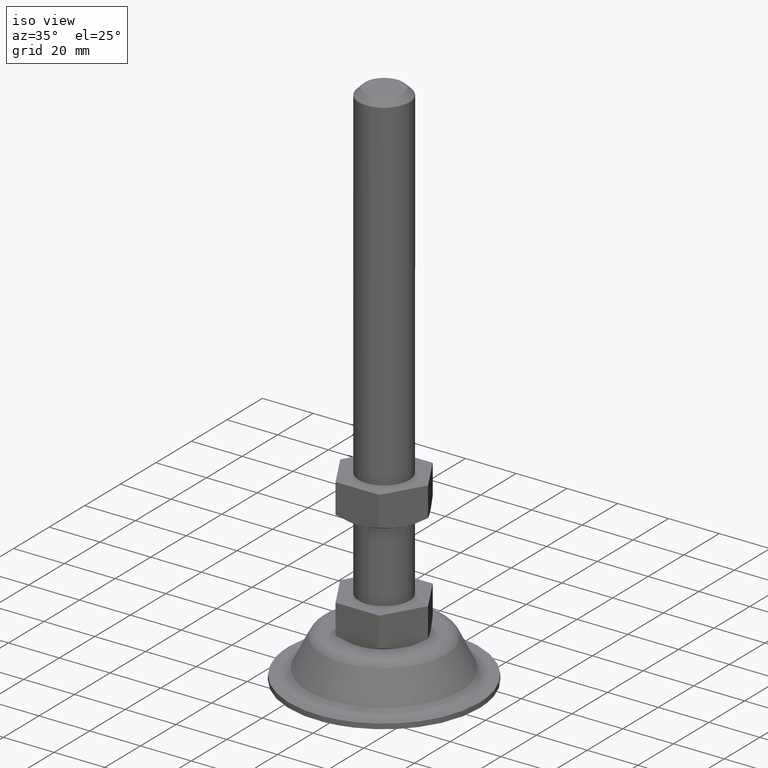
[diagram: clean part render]
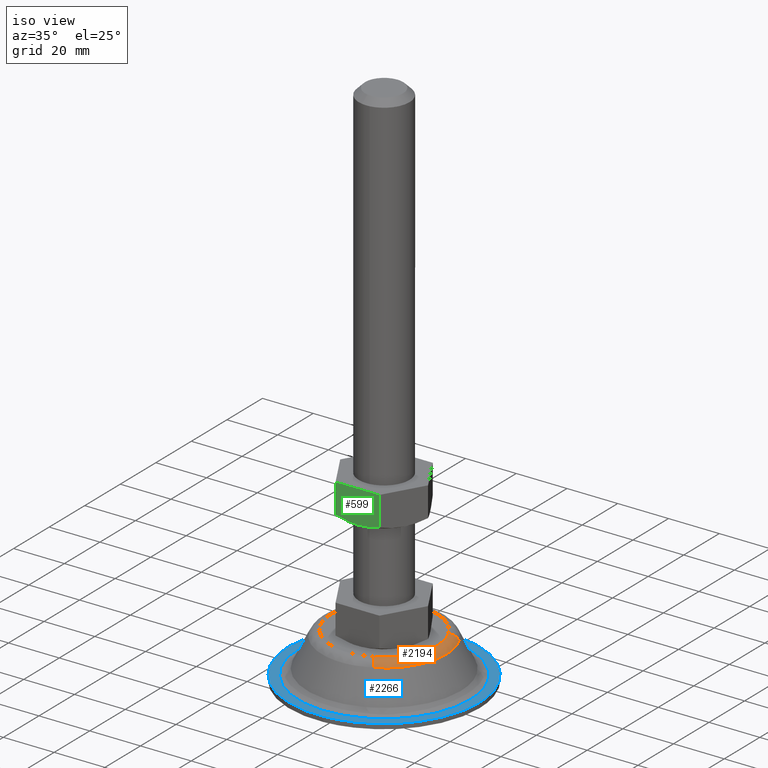
[diagram: same view with three faces highlighted in distinct colors, each labeled with its STEP entity id]
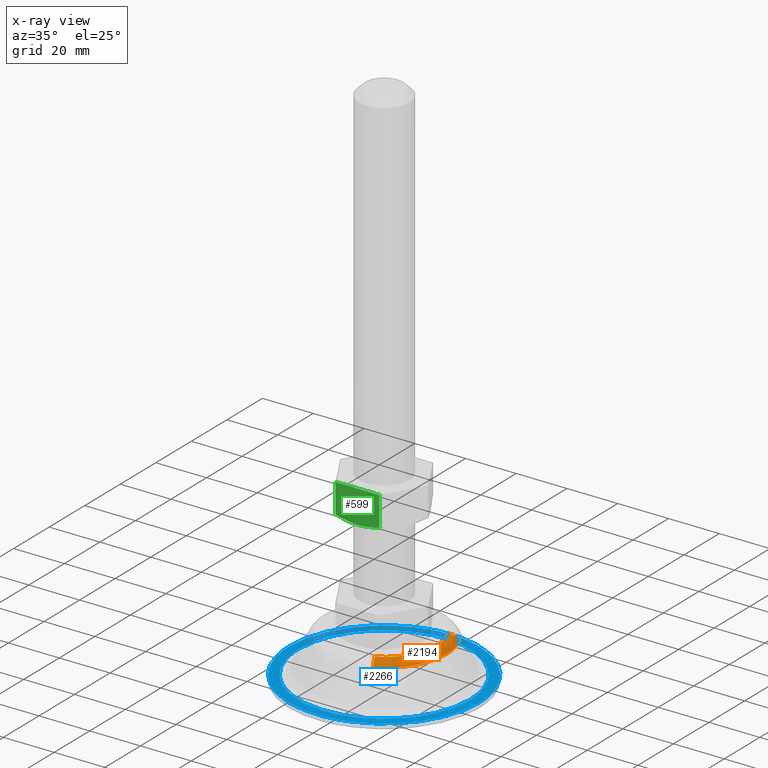
[diagram: x-ray of the same camera — body ghosted, the three highlighted faces saturated]
A machine part, iso view with three faces highlighted in distinct colors.
The next image is the same camera in x-ray (body ghosted, the three faces saturated) — at least one of them is partly hidden behind the body in this view.
Their STEP definitions:

[orange] entity #2194 — the highlighted face is a freeform B-spline surface patch.
#1387=CARTESIAN_POINT('',(21.925249911094561,10.998499066037970,15.762949531444070));
#1388=VERTEX_POINT('',#1387);
#1402=CARTESIAN_POINT('',(24.529238988803549,0.0,15.762949531433700));
#1403=VERTEX_POINT('',#1402);
#1404=CARTESIAN_POINT('',(21.925249911094561,10.998499066037970,15.762949531444066));
#1405=CARTESIAN_POINT('',(24.529238988803552,5.807507917918049,15.762949531433698));
#1406=CARTESIAN_POINT('',(24.529238988803549,0.0,15.762949531433700));
#1414=(BOUNDED_CURVE()B_SPLINE_CURVE(2,(#1404,#1405,#1406),.UNSPECIFIED.,.F.,.U.)B_SPLINE_CURVE_WITH_KNOTS((3,3),(0.423769062115740,0.500000000000000),.UNSPECIFIED.)CURVE()GEOMETRIC_REPRESENTATION_ITEM()RATIONAL_B_SPLINE_CURVE((0.875845342762740,0.910689900919643,1.0))REPRESENTATION_ITEM(''));
#1415=EDGE_CURVE('',#1388,#1403,#1414,.T.);
#1417=CARTESIAN_POINT('',(10.998499066009630,-21.925249911050471,15.762949531550230));
#1418=VERTEX_POINT('',#1417);
#1419=CARTESIAN_POINT('',(24.529238988803549,0.0,15.762949531433700));
#1420=CARTESIAN_POINT('',(24.529238988803549,-15.137740942828032,15.762949531433700));
#1421=CARTESIAN_POINT('',(10.998499066009629,-21.925249911050471,15.762949531550234));
#1429=(BOUNDED_CURVE()B_SPLINE_CURVE(2,(#1419,#1420,#1421),.UNSPECIFIED.,.F.,.U.)B_SPLINE_CURVE_WITH_KNOTS((3,3),(0.500000000000000,0.673769062115809),.UNSPECIFIED.)CURVE()GEOMETRIC_REPRESENTATION_ITEM()RATIONAL_B_SPLINE_CURVE((1.0,0.796416880266823,0.875845342762804))REPRESENTATION_ITEM(''));
#1430=EDGE_CURVE('',#1403,#1418,#1429,.T.);
#2074=CARTESIAN_POINT('',(9.388559230861771,-18.715872611456390,18.000000000000099));
#2075=VERTEX_POINT('',#2074);
#2093=CARTESIAN_POINT('',(18.715872611116431,9.388559230651554,18.000000000000099));
#2094=VERTEX_POINT('',#2093);
#2110=CARTESIAN_POINT('',(18.715872611116435,9.388559230651554,18.000000000000099));
#2111=CARTESIAN_POINT('',(20.943466161061814,10.506000795707660,17.999999996112813));
#2112=CARTESIAN_POINT('',(21.925249911094564,10.998499066037972,15.762949531444075));
#2120=(BOUNDED_CURVE()B_SPLINE_CURVE(2,(#2110,#2111,#2112),.UNSPECIFIED.,.F.,.U.)B_SPLINE_CURVE_WITH_KNOTS((3,3),(-1.657824829116691,-0.347170207455725),.UNSPECIFIED.)CURVE()GEOMETRIC_REPRESENTATION_ITEM()RATIONAL_B_SPLINE_CURVE((0.909224137584040,0.771255055186602,0.908176502131661))REPRESENTATION_ITEM(''));
#2121=EDGE_CURVE('',#2094,#1388,#2120,.T.);
#2127=CARTESIAN_POINT('',(9.388559230861773,-18.715872611456390,18.000000000000099));
#2128=CARTESIAN_POINT('',(10.506000795743267,-20.943466161132783,17.999999995616704));
#2129=CARTESIAN_POINT('',(10.998499066009629,-21.925249911050468,15.762949531550232));
#2137=(BOUNDED_CURVE()B_SPLINE_CURVE(2,(#2127,#2128,#2129),.UNSPECIFIED.,.F.,.U.)B_SPLINE_CURVE_WITH_KNOTS((3,3),(-1.657824828869857,-0.347170207528961),.UNSPECIFIED.)CURVE()GEOMETRIC_REPRESENTATION_ITEM()RATIONAL_B_SPLINE_CURVE((0.909224137532073,0.771255055220098,0.908176502116360))REPRESENTATION_ITEM(''));
#2138=EDGE_CURVE('',#2075,#1418,#2137,.T.);
#2143=CARTESIAN_POINT('',(18.528652254155258,9.294642721913061,17.994512264173697));
#2144=CARTESIAN_POINT('',(27.823294976068308,-9.234009532242194,17.994512264173697));
#2145=CARTESIAN_POINT('',(9.294642721913061,-18.528652254155258,17.994512264173697));
#2146=CARTESIAN_POINT('',(21.022028842772066,10.545410680882034,18.140782588950465));
#2147=CARTESIAN_POINT('',(31.567439523654098,-10.476618161890027,18.140782588950458));
#2148=CARTESIAN_POINT('',(10.545410680882036,-21.022028842772066,18.140782588950465));
#2149=CARTESIAN_POINT('',(22.003449994858904,11.037727058956960,15.572285087711302));
#2150=CARTESIAN_POINT('',(33.041177053815851,-10.965722935901944,15.572285087711297));
#2151=CARTESIAN_POINT('',(11.037727058956960,-22.003449994858894,15.572285087711302));
#2159=(BOUNDED_SURFACE()B_SPLINE_SURFACE(2,2,((#2143,#2146,#2149),(#2144,#2147,#2150),(#2145,#2148,#2151)),.UNSPECIFIED.,.F.,.F.,.U.)B_SPLINE_SURFACE_WITH_KNOTS((3,3),(3,3),(0.0,40.786328136550502),(0.0,5.033719716868561),.UNSPECIFIED.)GEOMETRIC_REPRESENTATION_ITEM()RATIONAL_B_SPLINE_SURFACE(((0.923693170007832,0.756838388212602,0.922540804150660),(0.653149704248237,0.535165556567428,0.652334858536222),(0.923693170007832,0.756838388212602,0.922540804150660)))REPRESENTATION_ITEM('')SURFACE());
#2160=CARTESIAN_POINT('',(20.938694608125552,0.0,18.0));
#2161=VERTEX_POINT('',#2160);
#2162=CARTESIAN_POINT('',(20.938694608125552,0.0,18.0));
#2163=CARTESIAN_POINT('',(20.938694608125552,-12.921906578390185,18.0));
#2164=CARTESIAN_POINT('',(9.388559230861771,-18.715872611456394,18.000000000000103));
#2172=(BOUNDED_CURVE()B_SPLINE_CURVE(2,(#2162,#2163,#2164),.UNSPECIFIED.,.F.,.U.)B_SPLINE_CURVE_WITH_KNOTS((3,3),(0.500000000000000,0.673769062112985),.UNSPECIFIED.)CURVE()GEOMETRIC_REPRESENTATION_ITEM()RATIONAL_B_SPLINE_CURVE((1.0,0.796416880270132,0.875845342760222))REPRESENTATION_ITEM(''));
#2173=EDGE_CURVE('',#2161,#2075,#2172,.T.);
#2174=ORIENTED_EDGE('',*,*,#2173,.T.);
#2175=ORIENTED_EDGE('',*,*,#2138,.T.);
#2176=ORIENTED_EDGE('',*,*,#1430,.F.);
#2177=ORIENTED_EDGE('',*,*,#1415,.F.);
#2178=ORIENTED_EDGE('',*,*,#2121,.F.);
#2179=CARTESIAN_POINT('',(18.715872611116431,9.388559230651554,18.000000000000103));
#2180=CARTESIAN_POINT('',(20.938694608125552,4.957415710571747,18.0));
#2181=CARTESIAN_POINT('',(20.938694608125552,0.0,18.0));
#2189=(BOUNDED_CURVE()B_SPLINE_CURVE(2,(#2179,#2180,#2181),.UNSPECIFIED.,.F.,.U.)B_SPLINE_CURVE_WITH_KNOTS((3,3),(0.423769062113509,0.500000000000000),.UNSPECIFIED.)CURVE()GEOMETRIC_REPRESENTATION_ITEM()RATIONAL_B_SPLINE_CURVE((0.875845342760701,0.910689900917030,1.0))REPRESENTATION_ITEM(''));
#2190=EDGE_CURVE('',#2094,#2161,#2189,.T.);
#2191=ORIENTED_EDGE('',*,*,#2190,.T.);
#2192=EDGE_LOOP('',(#2174,#2175,#2176,#2177,#2178,#2191));
#2193=FACE_OUTER_BOUND('',#2192,.T.);
#2194=ADVANCED_FACE('',(#2193),#2159,.T.);

[blue] entity #2266 — the highlighted face is a freeform B-spline surface patch.
#1192=CARTESIAN_POINT('',(-4.426273210541065,37.237858497307982,2.000000000000200));
#1193=VERTEX_POINT('',#1192);
#1199=CARTESIAN_POINT('',(37.500000000000000,0.0,2.000000000000200));
#1200=VERTEX_POINT('',#1199);
#1201=CARTESIAN_POINT('',(-4.426273210541065,37.237858497307990,2.000000000000200));
#1202=CARTESIAN_POINT('',(-2.220899136429925,37.500000000000000,2.000000000000200));
#1203=CARTESIAN_POINT('',(0.0,37.500000000000000,2.000000000000200));
#1204=CARTESIAN_POINT('',(37.500000000000000,37.500000000000000,2.000000000000199));
#1205=CARTESIAN_POINT('',(37.500000000000000,0.0,2.000000000000200));
#1213=(BOUNDED_CURVE()B_SPLINE_CURVE(2,(#1201,#1202,#1203,#1204,#1205),.UNSPECIFIED.,.F.,.U.)B_SPLINE_CURVE_WITH_KNOTS((3,2,3),(0.229562521574001,0.250000000000000,0.500000000000000),.UNSPECIFIED.)CURVE()GEOMETRIC_REPRESENTATION_ITEM()RATIONAL_B_SPLINE_CURVE((0.956026848384252,0.976056004637514,1.0,0.707106781186547,1.0))REPRESENTATION_ITEM(''));
#1214=EDGE_CURVE('',#1193,#1200,#1213,.T.);
#1216=CARTESIAN_POINT('',(2.289268383772411,-37.430058111955439,2.000000000000200));
#1217=VERTEX_POINT('',#1216);
#1218=CARTESIAN_POINT('',(37.500000000000000,0.0,2.000000000000200));
#1219=CARTESIAN_POINT('',(37.500000000000000,-35.276526465916405,2.000000000000201));
#1220=CARTESIAN_POINT('',(2.289268383772411,-37.430058111955447,2.000000000000200));
#1228=(BOUNDED_CURVE()B_SPLINE_CURVE(2,(#1218,#1219,#1220),.UNSPECIFIED.,.F.,.U.)B_SPLINE_CURVE_WITH_KNOTS((3,3),(0.500000000000000,0.739333201256925),.UNSPECIFIED.)CURVE()GEOMETRIC_REPRESENTATION_ITEM()RATIONAL_B_SPLINE_CURVE((1.0,0.719603713259726,0.976072553928287))REPRESENTATION_ITEM(''));
#1229=EDGE_CURVE('',#1200,#1217,#1228,.T.);
#1303=CARTESIAN_POINT('',(-37.500000000000000,0.0,2.000000000000200));
#1304=VERTEX_POINT('',#1303);
#1305=CARTESIAN_POINT('',(2.289268383772411,-37.430058111955447,2.000000000000200));
#1306=CARTESIAN_POINT('',(1.145702626617998,-37.500000000000000,2.000000000000200));
#1307=CARTESIAN_POINT('',(0.0,-37.500000000000000,2.000000000000200));
#1308=CARTESIAN_POINT('',(-37.500000000000000,-37.500000000000000,2.000000000000199));
#1309=CARTESIAN_POINT('',(-37.500000000000000,0.0,2.000000000000200));
#1317=(BOUNDED_CURVE()B_SPLINE_CURVE(2,(#1305,#1306,#1307,#1308,#1309),.UNSPECIFIED.,.F.,.U.)B_SPLINE_CURVE_WITH_KNOTS((3,2,3),(0.739333201256925,0.750000000000000,1.0),.UNSPECIFIED.)CURVE()GEOMETRIC_REPRESENTATION_ITEM()RATIONAL_B_SPLINE_CURVE((0.976072553928287,0.987503067926822,1.0,0.707106781186547,1.0))REPRESENTATION_ITEM(''));
#1318=EDGE_CURVE('',#1217,#1304,#1317,.T.);
#1320=CARTESIAN_POINT('',(-37.500000000000000,0.0,2.000000000000200));
#1321=CARTESIAN_POINT('',(-37.499999999999993,33.306554261016771,2.000000000000200));
#1322=CARTESIAN_POINT('',(-4.426273210541065,37.237858497307990,2.000000000000200));
#1330=(BOUNDED_CURVE()B_SPLINE_CURVE(2,(#1320,#1321,#1322),.UNSPECIFIED.,.F.,.U.)B_SPLINE_CURVE_WITH_KNOTS((3,3),(0.0,0.229562521574001),.UNSPECIFIED.)CURVE()GEOMETRIC_REPRESENTATION_ITEM()RATIONAL_B_SPLINE_CURVE((1.0,0.731050776549033,0.956026848384252))REPRESENTATION_ITEM(''));
#1331=EDGE_CURVE('',#1304,#1193,#1330,.T.);
#1918=CARTESIAN_POINT('',(13.782930928103120,-30.839101996789449,2.000000000003668));
#1919=VERTEX_POINT('',#1918);
#1920=CARTESIAN_POINT('',(-33.778974900876548,0.0,2.000000000000200));
#1921=VERTEX_POINT('',#1920);
#1922=CARTESIAN_POINT('',(13.782930928103116,-30.839101996789456,2.000000000003668));
#1923=CARTESIAN_POINT('',(7.205001522784190,-33.778978065627065,2.000000000003428));
#1924=CARTESIAN_POINT('',(0.000001252369840,-33.778977703035352,2.000000000003058));
#1925=CARTESIAN_POINT('',(-33.778974408255849,-33.778976003107999,2.000000000001325));
#1926=CARTESIAN_POINT('',(-33.778974900876548,0.0,2.000000000000200));
#1934=(BOUNDED_CURVE()B_SPLINE_CURVE(2,(#1922,#1923,#1924,#1925,#1926),.UNSPECIFIED.,.F.,.U.)B_SPLINE_CURVE_WITH_KNOTS((3,2,3),(0.680709527694445,0.750000000000000,1.0),.UNSPECIFIED.)CURVE()GEOMETRIC_REPRESENTATION_ITEM()RATIONAL_B_SPLINE_CURVE((0.882641684402579,0.918821162133287,1.0,0.707106781186548,1.0))REPRESENTATION_ITEM(''));
#1935=EDGE_CURVE('',#1919,#1921,#1934,.T.);
#1954=CARTESIAN_POINT('',(30.000338810761392,15.524136575906599,2.000000000000201));
#1955=VERTEX_POINT('',#1954);
#1969=CARTESIAN_POINT('',(-33.778974900876548,0.0,2.000000000000200));
#1970=CARTESIAN_POINT('',(-33.778974900876555,33.778974900876555,2.000000000000199));
#1971=CARTESIAN_POINT('',(0.0,33.778974900876548,2.000000000000200));
#1972=CARTESIAN_POINT('',(20.554092052148665,33.778974900876548,2.000000000000200));
#1973=CARTESIAN_POINT('',(30.000338810761388,15.524136575906601,2.000000000000201));
#1981=(BOUNDED_CURVE()B_SPLINE_CURVE(2,(#1969,#1970,#1971,#1972,#1973),.UNSPECIFIED.,.F.,.U.)B_SPLINE_CURVE_WITH_KNOTS((3,2,3),(0.0,0.250000000000000,0.421825371001586),.UNSPECIFIED.)CURVE()GEOMETRIC_REPRESENTATION_ITEM()RATIONAL_B_SPLINE_CURVE((1.0,0.707106781186548,1.0,0.798694056054119,0.874103860134842))REPRESENTATION_ITEM(''));
#1982=EDGE_CURVE('',#1921,#1955,#1981,.T.);
#2010=CARTESIAN_POINT('',(33.778974900876548,0.0,2.000000000000200));
#2011=VERTEX_POINT('',#2010);
#2012=CARTESIAN_POINT('',(33.778974900876548,0.0,2.000000000000200));
#2013=CARTESIAN_POINT('',(33.778975660625690,-21.902260505486836,2.000000000001935));
#2014=CARTESIAN_POINT('',(13.782930928103116,-30.839101996789456,2.000000000003668));
#2022=(BOUNDED_CURVE()B_SPLINE_CURVE(2,(#2012,#2013,#2014),.UNSPECIFIED.,.F.,.U.)B_SPLINE_CURVE_WITH_KNOTS((3,3),(0.500000000000000,0.680709527694445),.UNSPECIFIED.)CURVE()GEOMETRIC_REPRESENTATION_ITEM()RATIONAL_B_SPLINE_CURVE((1.0,0.788285619053261,0.882641684402579))REPRESENTATION_ITEM(''));
#2023=EDGE_CURVE('',#2011,#1919,#2022,.T.);
#2025=CARTESIAN_POINT('',(30.000338810761388,15.524136575906601,2.000000000000201));
#2026=CARTESIAN_POINT('',(33.778974900876541,8.221935754159370,2.000000000000200));
#2027=CARTESIAN_POINT('',(33.778974900876548,0.0,2.000000000000200));
#2035=(BOUNDED_CURVE()B_SPLINE_CURVE(2,(#2025,#2026,#2027),.UNSPECIFIED.,.F.,.U.)B_SPLINE_CURVE_WITH_KNOTS((3,3),(0.421825371001586,0.500000000000000),.UNSPECIFIED.)CURVE()GEOMETRIC_REPRESENTATION_ITEM()RATIONAL_B_SPLINE_CURVE((0.874103860134842,0.908412725132428,1.0))REPRESENTATION_ITEM(''));
#2036=EDGE_CURVE('',#1955,#2011,#2035,.T.);
#2249=CARTESIAN_POINT('',(-41.246249854635451,-41.245338546059941,2.000000000000200));
#2250=CARTESIAN_POINT('',(41.246251866292212,-41.245338546059941,2.000000000000200));
#2251=CARTESIAN_POINT('',(-41.246249854635451,41.245567874930707,2.000000000000200));
#2252=CARTESIAN_POINT('',(41.246251866292212,41.245567874930707,2.000000000000200));
#2253=B_SPLINE_SURFACE_WITH_KNOTS('',1,1,((#2249,#2251),(#2250,#2252)),.UNSPECIFIED.,.F.,.F.,.U.,(2,2),(2,2),(0.0,82.492501720927663),(0.0,82.490906420990655),.UNSPECIFIED.);
#2254=ORIENTED_EDGE('',*,*,#1318,.F.);
#2255=ORIENTED_EDGE('',*,*,#1229,.F.);
#2256=ORIENTED_EDGE('',*,*,#1214,.F.);
#2257=ORIENTED_EDGE('',*,*,#1331,.F.);
#2258=EDGE_LOOP('',(#2254,#2255,#2256,#2257));
#2259=FACE_OUTER_BOUND('',#2258,.T.);
#2260=ORIENTED_EDGE('',*,*,#1982,.T.);
#2261=ORIENTED_EDGE('',*,*,#2036,.T.);
#2262=ORIENTED_EDGE('',*,*,#2023,.T.);
#2263=ORIENTED_EDGE('',*,*,#1935,.T.);
#2264=EDGE_LOOP('',(#2260,#2261,#2262,#2263));
#2265=FACE_BOUND('',#2264,.T.);
#2266=ADVANCED_FACE('',(#2259,#2265),#2253,.T.);

[green] entity #599 — the highlighted face is a freeform B-spline surface patch.
#226=CARTESIAN_POINT('',(8.639746000000001,-15.0,62.345671394023498));
#227=VERTEX_POINT('',#226);
#243=CARTESIAN_POINT('',(-8.639746000000001,-15.0,62.345671394023498));
#244=VERTEX_POINT('',#243);
#245=CARTESIAN_POINT('',(-8.639746000000040,-15.0,62.345671394023391));
#246=CARTESIAN_POINT('',(-7.936833729160880,-15.0,62.143118803509253));
#247=CARTESIAN_POINT('',(-7.227461233591718,-15.0,61.957191362850843));
#248=CARTESIAN_POINT('',(-5.792395982895466,-15.0,61.627336067024530));
#249=CARTESIAN_POINT('',(-5.072865540092748,-15.0,61.484931105763863));
#250=CARTESIAN_POINT('',(-3.630093047437006,-15.0,61.252851617846993));
#251=CARTESIAN_POINT('',(-2.906706002747127,-15.0,61.163194633454047));
#252=CARTESIAN_POINT('',(-1.455476411894551,-15.0,61.042631424531443));
#253=CARTESIAN_POINT('',(-0.727630583971161,-15.0,61.011768473679403));
#254=CARTESIAN_POINT('',(0.732753118449164,-15.0,61.011912443008029));
#255=CARTESIAN_POINT('',(1.465291907568249,-15.0,61.042931423502608));
#256=CARTESIAN_POINT('',(2.383861673901577,-15.0,61.119895832698177));
#257=CARTESIAN_POINT('',(2.567617441095455,-15.0,61.137185060879297));
#258=CARTESIAN_POINT('',(2.933746094967379,-15.0,61.175312715864870));
#259=CARTESIAN_POINT('',(3.481481264012233,-15.0,61.237876046936201));
#260=CARTESIAN_POINT('',(4.025000240808047,-15.0,61.315975503435439));
#261=CARTESIAN_POINT('',(5.828098707583255,-15.0,61.608112828349640));
#262=CARTESIAN_POINT('',(7.243065403558322,-15.0,61.943201150343647));
#263=CARTESIAN_POINT('',(8.639746000000027,-15.0,62.345671394023377));
#264=B_SPLINE_CURVE_WITH_KNOTS('',3,(#245,#246,#247,#248,#249,#250,#251,#252,#253,#254,#255,#256,#257,#258,#259,#260,#261,#262,#263),.UNSPECIFIED.,.F.,.U.,(4,2,2,2,2,2,2,1,2,4),(0.0,0.125000000000000,0.250000000000000,0.375000000000000,0.500000000000000,0.625000000000000,0.656250000000000,0.687500000000000,0.750000000000000,1.0),.UNSPECIFIED.);
#265=EDGE_CURVE('',#244,#227,#264,.T.);
#511=CARTESIAN_POINT('',(-8.639746000000001,-15.0,74.0));
#512=VERTEX_POINT('',#511);
#520=CARTESIAN_POINT('',(8.639746000000001,-15.0,74.0));
#521=VERTEX_POINT('',#520);
#522=CARTESIAN_POINT('',(8.639746000000001,-15.0,74.0));
#523=CARTESIAN_POINT('',(-8.639746000000001,-15.0,74.0));
#524=QUASI_UNIFORM_CURVE('',1,(#522,#523),.UNSPECIFIED.,.F.,.U.);
#525=EDGE_CURVE('',#521,#512,#524,.T.);
#580=CARTESIAN_POINT('',(-9.502856205759496,-15.0,74.648758503804615));
#581=CARTESIAN_POINT('',(-9.502856205759496,-15.0,60.363082409523983));
#582=CARTESIAN_POINT('',(9.502855742287405,-15.0,74.648758503804615));
#583=CARTESIAN_POINT('',(9.502855742287405,-15.0,60.363082409523983));
#584=B_SPLINE_SURFACE_WITH_KNOTS('',1,1,((#580,#582),(#581,#583)),.UNSPECIFIED.,.F.,.F.,.U.,(2,2),(2,2),(0.0,14.285676094280641),(0.0,19.005711948046901),.UNSPECIFIED.);
#585=CARTESIAN_POINT('',(-8.639746000000001,-15.0,74.0));
#586=CARTESIAN_POINT('',(-8.639746000000001,-15.0,62.345671394023498));
#587=QUASI_UNIFORM_CURVE('',1,(#585,#586),.UNSPECIFIED.,.F.,.U.);
#588=EDGE_CURVE('',#512,#244,#587,.T.);
#589=ORIENTED_EDGE('',*,*,#588,.T.);
#590=ORIENTED_EDGE('',*,*,#265,.T.);
#591=CARTESIAN_POINT('',(8.639746000000001,-15.0,74.0));
#592=CARTESIAN_POINT('',(8.639746000000001,-15.0,62.345671394023498));
#593=QUASI_UNIFORM_CURVE('',1,(#591,#592),.UNSPECIFIED.,.F.,.U.);
#594=EDGE_CURVE('',#521,#227,#593,.T.);
#595=ORIENTED_EDGE('',*,*,#594,.F.);
#596=ORIENTED_EDGE('',*,*,#525,.T.);
#597=EDGE_LOOP('',(#589,#590,#595,#596));
#598=FACE_OUTER_BOUND('',#597,.T.);
#599=ADVANCED_FACE('',(#598),#584,.T.);